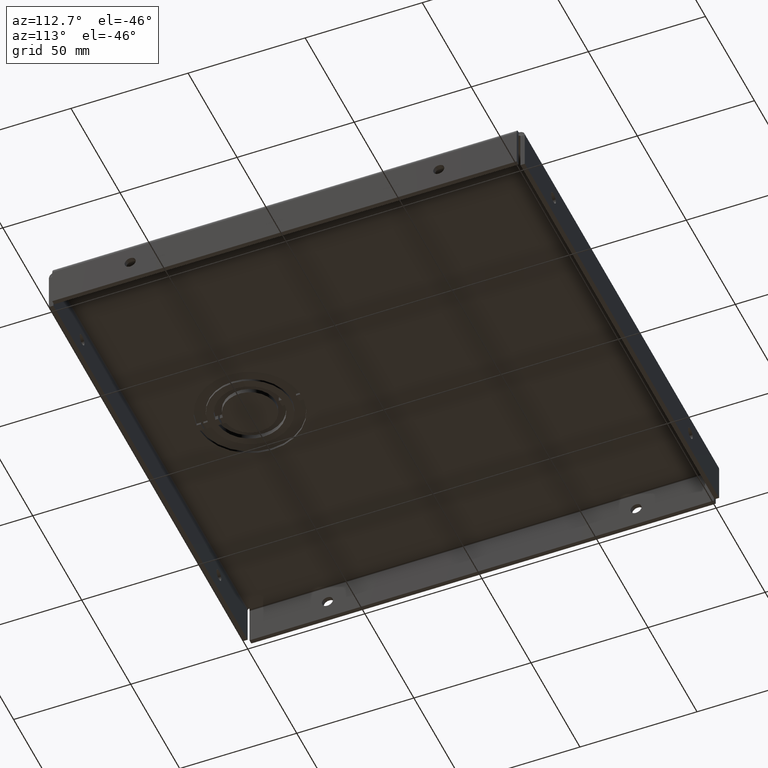
[diagram: clean part render]
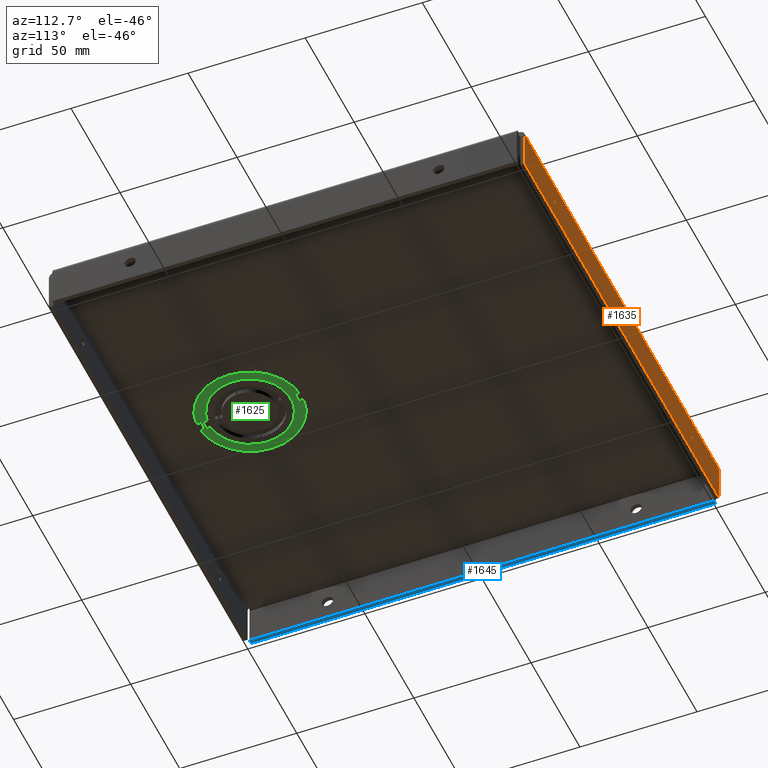
[diagram: same view with three faces highlighted in distinct colors, each labeled with its STEP entity id]
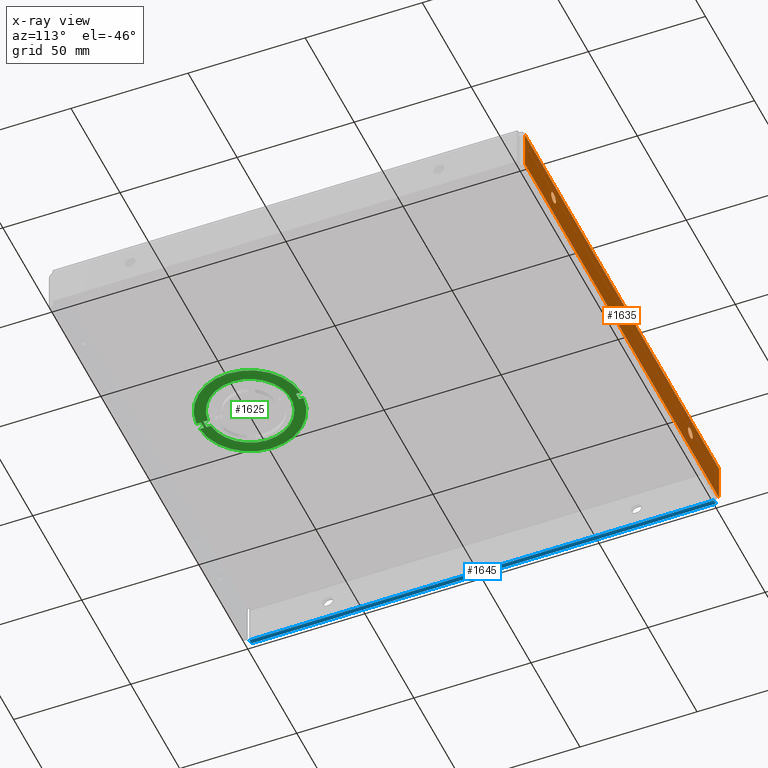
[diagram: x-ray of the same camera — body ghosted, the three highlighted faces saturated]
A machine part, auxiliary view with three faces highlighted in distinct colors.
The next image is the same camera in x-ray (body ghosted, the three faces saturated) — at least one of them is partly hidden behind the body in this view.
Their STEP definitions:

[orange] entity #1635 — the highlighted planar face has unit normal (-0, 1, 0).
#41=FACE_BOUND('',#260,.T.);
#42=FACE_BOUND('',#261,.T.);
#81=CIRCLE('',#1750,0.09375);
#82=CIRCLE('',#1751,0.09375);
#155=FACE_OUTER_BOUND('',#259,.T.);
#259=EDGE_LOOP('',(#1170,#1171,#1172,#1173));
#260=EDGE_LOOP('',(#1174));
#261=EDGE_LOOP('',(#1175));
#421=LINE('',#2427,#592);
#422=LINE('',#2429,#593);
#423=LINE('',#2431,#594);
#424=LINE('',#2432,#595);
#592=VECTOR('',#1962,7.80780582617584);
#593=VECTOR('',#1963,0.64475);
#594=VECTOR('',#1964,7.80780582617584);
#595=VECTOR('',#1965,0.64475);
#759=VERTEX_POINT('',#2425);
#760=VERTEX_POINT('',#2426);
#761=VERTEX_POINT('',#2428);
#762=VERTEX_POINT('',#2430);
#763=VERTEX_POINT('',#2433);
#764=VERTEX_POINT('',#2435);
#915=EDGE_CURVE('',#759,#760,#421,.T.);
#916=EDGE_CURVE('',#761,#760,#422,.T.);
#917=EDGE_CURVE('',#762,#761,#423,.T.);
#918=EDGE_CURVE('',#759,#762,#424,.T.);
#919=EDGE_CURVE('',#763,#763,#81,.T.);
#920=EDGE_CURVE('',#764,#764,#82,.T.);
#1170=ORIENTED_EDGE('',*,*,#915,.T.);
#1171=ORIENTED_EDGE('',*,*,#916,.F.);
#1172=ORIENTED_EDGE('',*,*,#917,.F.);
#1173=ORIENTED_EDGE('',*,*,#918,.F.);
#1174=ORIENTED_EDGE('',*,*,#919,.T.);
#1175=ORIENTED_EDGE('',*,*,#920,.T.);
#1564=PLANE('',#1749);
#1635=ADVANCED_FACE('',(#155,#41,#42),#1564,.T.);
#1749=AXIS2_PLACEMENT_3D('',#2424,#1960,#1961);
#1750=AXIS2_PLACEMENT_3D('',#2434,#1966,#1967);
#1751=AXIS2_PLACEMENT_3D('',#2436,#1968,#1969);
#1960=DIRECTION('center_axis',(-4.77978227227849E-19,1.,5.39251013094189E-15));
#1961=DIRECTION('ref_axis',(1.,0.,0.));
#1962=DIRECTION('',(1.,4.77978227227849E-19,2.57644740436363E-33));
#1963=DIRECTION('',(0.,-5.39030285815812E-15,1.));
#1964=DIRECTION('',(1.,0.,0.));
#1965=DIRECTION('',(0.,5.39030285815812E-15,-1.));
#1966=DIRECTION('center_axis',(4.77978227227849E-19,-1.,-5.39251013094189E-15));
#1967=DIRECTION('ref_axis',(-1.,0.,-8.29972542437303E-37));
#1968=DIRECTION('center_axis',(4.77978227227849E-19,-1.,-5.39251013094189E-15));
#1969=DIRECTION('ref_axis',(-1.,0.,-8.29972542437303E-37));
#2424=CARTESIAN_POINT('Origin',(-2.40402623442455E-16,4.,-0.31764684315239));
#2425=CARTESIAN_POINT('',(-3.90390291308792,4.,-0.0312499999999995));
#2426=CARTESIAN_POINT('',(3.90390291308792,4.,-0.0312499999999995));
#2427=CARTESIAN_POINT('',(-4.69891950010196E-16,4.,-0.0312499999999995));
#2428=CARTESIAN_POINT('',(3.90390291308792,4.,-0.676));
#2429=CARTESIAN_POINT('',(3.90390291308792,4.,-0.0312499999999995));
#2430=CARTESIAN_POINT('',(-3.90390291308792,4.,-0.676));
#2431=CARTESIAN_POINT('',(-3.90390291308792,4.,-0.676));
#2432=CARTESIAN_POINT('',(-3.90390291308792,4.,-0.0312499999999995));
#2433=CARTESIAN_POINT('',(-2.65625000000001,4.,-0.33225));
#2434=CARTESIAN_POINT('Origin',(-2.75000000000001,4.,-0.33225));
#2435=CARTESIAN_POINT('',(2.84374999999999,4.,-0.33225));
#2436=CARTESIAN_POINT('Origin',(2.74999999999999,4.,-0.33225));

[blue] entity #1645 — the highlighted planar face has unit normal (-0, -0, -1).
#165=FACE_OUTER_BOUND('',#275,.T.);
#275=EDGE_LOOP('',(#1216,#1217,#1218,#1219));
#439=LINE('',#2541,#610);
#441=LINE('',#2549,#612);
#442=LINE('',#2551,#613);
#443=LINE('',#2552,#614);
#610=VECTOR('',#2002,7.80780582617584);
#612=VECTOR('',#2010,0.0739999999999994);
#613=VECTOR('',#2011,7.80780582617584);
#614=VECTOR('',#2012,0.0739999999999994);
#776=VERTEX_POINT('',#2538);
#777=VERTEX_POINT('',#2540);
#780=VERTEX_POINT('',#2548);
#781=VERTEX_POINT('',#2550);
#941=EDGE_CURVE('',#777,#776,#439,.T.);
#945=EDGE_CURVE('',#780,#776,#441,.T.);
#946=EDGE_CURVE('',#781,#780,#442,.T.);
#947=EDGE_CURVE('',#781,#777,#443,.T.);
#1216=ORIENTED_EDGE('',*,*,#941,.T.);
#1217=ORIENTED_EDGE('',*,*,#945,.F.);
#1218=ORIENTED_EDGE('',*,*,#946,.F.);
#1219=ORIENTED_EDGE('',*,*,#947,.T.);
#1570=PLANE('',#1763);
#1645=ADVANCED_FACE('',(#165),#1570,.T.);
#1763=AXIS2_PLACEMENT_3D('',#2547,#2008,#2009);
#2002=DIRECTION('',(-1.74838271594513E-16,1.,-4.30375676727215E-18));
#2008=DIRECTION('center_axis',(-5.39030285815812E-15,-4.30375676727309E-18,
-1.));
#2009=DIRECTION('ref_axis',(-1.,0.,5.35793631684101E-15));
#2010=DIRECTION('',(-1.,-1.74838271594513E-16,5.39030285815812E-15));
#2011=DIRECTION('',(-1.74838271594513E-16,1.,-4.30375676727215E-18));
#2012=DIRECTION('',(-1.,-1.74838271594513E-16,5.39030285815812E-15));
#2538=CARTESIAN_POINT('',(-4.,3.90390291308792,-0.676));
#2540=CARTESIAN_POINT('',(-4.,-3.90390291308792,-0.676));
#2541=CARTESIAN_POINT('',(-4.,-3.90390291308792,-0.676));
#2547=CARTESIAN_POINT('Origin',(-3.926,-3.90390291308792,-0.676));
#2548=CARTESIAN_POINT('',(-3.926,3.90390291308792,-0.676));
#2549=CARTESIAN_POINT('',(-3.926,3.90390291308792,-0.676));
#2550=CARTESIAN_POINT('',(-3.926,-3.90390291308792,-0.676));
#2551=CARTESIAN_POINT('',(-3.926,-3.90390291308792,-0.676));
#2552=CARTESIAN_POINT('',(-3.926,-3.90390291308792,-0.676));

[green] entity #1625 — the highlighted planar face has unit normal (0, 0, 1).
#39=FACE_BOUND('',#248,.T.);
#75=CIRCLE('',#1734,0.875);
#76=CIRCLE('',#1735,0.875);
#77=CIRCLE('',#1736,0.6875);
#145=FACE_OUTER_BOUND('',#247,.T.);
#247=EDGE_LOOP('',(#1114,#1115,#1116,#1117,#1118,#1119,#1120,#1121));
#248=EDGE_LOOP('',(#1122,#1123,#1124,#1125));
#396=LINE('',#2349,#567);
#397=LINE('',#2351,#568);
#398=LINE('',#2353,#569);
#399=LINE('',#2357,#570);
#400=LINE('',#2359,#571);
#401=LINE('',#2360,#572);
#402=LINE('',#2365,#573);
#403=LINE('',#2367,#574);
#404=LINE('',#2368,#575);
#567=VECTOR('',#1907,0.0740000000000001);
#568=VECTOR('',#1908,0.125000000151755);
#569=VECTOR('',#1909,0.0740000000000001);
#570=VECTOR('',#1912,0.0740000000000001);
#571=VECTOR('',#1913,0.125000000151755);
#572=VECTOR('',#1914,0.0739999999999998);
#573=VECTOR('',#1917,0.0740000000000001);
#574=VECTOR('',#1918,0.125000000151755);
#575=VECTOR('',#1919,0.0740000000000001);
#734=VERTEX_POINT('',#2345);
#735=VERTEX_POINT('',#2346);
#736=VERTEX_POINT('',#2348);
#737=VERTEX_POINT('',#2350);
#738=VERTEX_POINT('',#2352);
#739=VERTEX_POINT('',#2354);
#740=VERTEX_POINT('',#2356);
#741=VERTEX_POINT('',#2358);
#742=VERTEX_POINT('',#2361);
#743=VERTEX_POINT('',#2362);
#744=VERTEX_POINT('',#2364);
#745=VERTEX_POINT('',#2366);
#882=EDGE_CURVE('',#734,#735,#75,.T.);
#883=EDGE_CURVE('',#736,#734,#396,.T.);
#884=EDGE_CURVE('',#737,#736,#397,.T.);
#885=EDGE_CURVE('',#738,#737,#398,.T.);
#886=EDGE_CURVE('',#739,#738,#76,.T.);
#887=EDGE_CURVE('',#740,#739,#399,.T.);
#888=EDGE_CURVE('',#741,#740,#400,.T.);
#889=EDGE_CURVE('',#735,#741,#401,.T.);
#890=EDGE_CURVE('',#742,#743,#77,.T.);
#891=EDGE_CURVE('',#744,#742,#402,.T.);
#892=EDGE_CURVE('',#745,#744,#403,.T.);
#893=EDGE_CURVE('',#743,#745,#404,.T.);
#1114=ORIENTED_EDGE('',*,*,#882,.F.);
#1115=ORIENTED_EDGE('',*,*,#883,.F.);
#1116=ORIENTED_EDGE('',*,*,#884,.F.);
#1117=ORIENTED_EDGE('',*,*,#885,.F.);
#1118=ORIENTED_EDGE('',*,*,#886,.F.);
#1119=ORIENTED_EDGE('',*,*,#887,.F.);
#1120=ORIENTED_EDGE('',*,*,#888,.F.);
#1121=ORIENTED_EDGE('',*,*,#889,.F.);
#1122=ORIENTED_EDGE('',*,*,#890,.F.);
#1123=ORIENTED_EDGE('',*,*,#891,.F.);
#1124=ORIENTED_EDGE('',*,*,#892,.F.);
#1125=ORIENTED_EDGE('',*,*,#893,.F.);
#1557=PLANE('',#1733);
#1625=ADVANCED_FACE('',(#145,#39),#1557,.F.);
#1733=AXIS2_PLACEMENT_3D('',#2344,#1903,#1904);
#1734=AXIS2_PLACEMENT_3D('',#2347,#1905,#1906);
#1735=AXIS2_PLACEMENT_3D('',#2355,#1910,#1911);
#1736=AXIS2_PLACEMENT_3D('',#2363,#1915,#1916);
#1903=DIRECTION('center_axis',(8.49180890230855E-32,1.00895535677302E-31,
1.));
#1904=DIRECTION('ref_axis',(1.,0.,0.));
#1905=DIRECTION('center_axis',(8.49180890230855E-32,1.00895535677302E-31,
1.));
#1906=DIRECTION('ref_axis',(-0.0714777210713922,0.997442196515889,0.));
#1907=DIRECTION('',(0.,-1.,1.00895535677302E-31));
#1908=DIRECTION('',(0.999999998785962,4.92755063898061E-5,-8.49230605986047E-32));
#1909=DIRECTION('',(0.,1.,-1.00895535677302E-31));
#1910=DIRECTION('center_axis',(8.49180890230855E-32,1.00895535677302E-31,
1.));
#1911=DIRECTION('ref_axis',(0.0714777210713924,-0.997442196515889,0.));
#1912=DIRECTION('',(0.,1.,-1.00895535677302E-31));
#1913=DIRECTION('',(-0.999999998785962,-4.92755063884074E-5,8.49230605986046E-32));
#1914=DIRECTION('',(0.,-1.,1.00895535677302E-31));
#1915=DIRECTION('center_axis',(-8.49180890230855E-32,-1.00895535677302E-31,
-1.));
#1916=DIRECTION('ref_axis',(-0.0909581623752382,0.995854714653357,0.));
#1917=DIRECTION('',(0.,1.,-1.00895535677302E-31));
#1918=DIRECTION('',(-0.999999998785962,-4.92755063884075E-5,8.49230605986046E-32));
#1919=DIRECTION('',(0.,-1.,1.00895535677302E-31));
#2344=CARTESIAN_POINT('Origin',(1.3987061727561E-15,-2.252,0.037));
#2345=CARTESIAN_POINT('',(0.0625430059374696,-3.1247619219514,0.037));
#2346=CARTESIAN_POINT('',(0.0624569940625331,-1.37923191861029,0.037));
#2347=CARTESIAN_POINT('Origin',(1.3987061727561E-15,-2.252,0.037));
#2348=CARTESIAN_POINT('',(0.0625430059374696,-3.0507619219514,0.037));
#2349=CARTESIAN_POINT('',(0.0625430059374696,-2.6513809609757,0.037));
#2350=CARTESIAN_POINT('',(-0.0624569940625305,-3.05076808138971,0.037));
#2351=CARTESIAN_POINT('',(-0.0312088172562644,-3.05076654161997,0.037));
#2352=CARTESIAN_POINT('',(-0.0624569940625305,-3.12476808138971,0.037));
#2353=CARTESIAN_POINT('',(-0.0624569940625305,-2.68838404069485,0.037));
#2354=CARTESIAN_POINT('',(-0.062543005937467,-1.3792380780486,0.037));
#2355=CARTESIAN_POINT('Origin',(1.3987061727561E-15,-2.252,0.037));
#2356=CARTESIAN_POINT('',(-0.062543005937467,-1.4532380780486,0.037));
#2357=CARTESIAN_POINT('',(-0.062543005937467,-1.8526190390243,0.037));
#2358=CARTESIAN_POINT('',(0.0624569940625331,-1.45323191861029,0.037));
#2359=CARTESIAN_POINT('',(0.0312088172562676,-1.45323345838003,0.037));
#2360=CARTESIAN_POINT('',(0.0624569940625331,-1.81561595930514,0.037));
#2361=CARTESIAN_POINT('',(-0.0624662633670223,-2.93665627576249,0.037));
#2362=CARTESIAN_POINT('',(0.0625337366329777,-2.93665011632418,0.037));
#2363=CARTESIAN_POINT('Origin',(1.3987061727561E-15,-2.252,0.037));
#2364=CARTESIAN_POINT('',(-0.0624662633670223,-3.01065627576249,0.037));
#2365=CARTESIAN_POINT('',(-0.0624662633670223,-2.59432813788124,0.037));
#2366=CARTESIAN_POINT('',(0.0625337366329777,-3.01065011632418,0.037));
#2367=CARTESIAN_POINT('',(-0.0312144401732881,-3.01065473581307,0.037));
#2368=CARTESIAN_POINT('',(0.0625337366329777,-2.63132505816209,0.037));